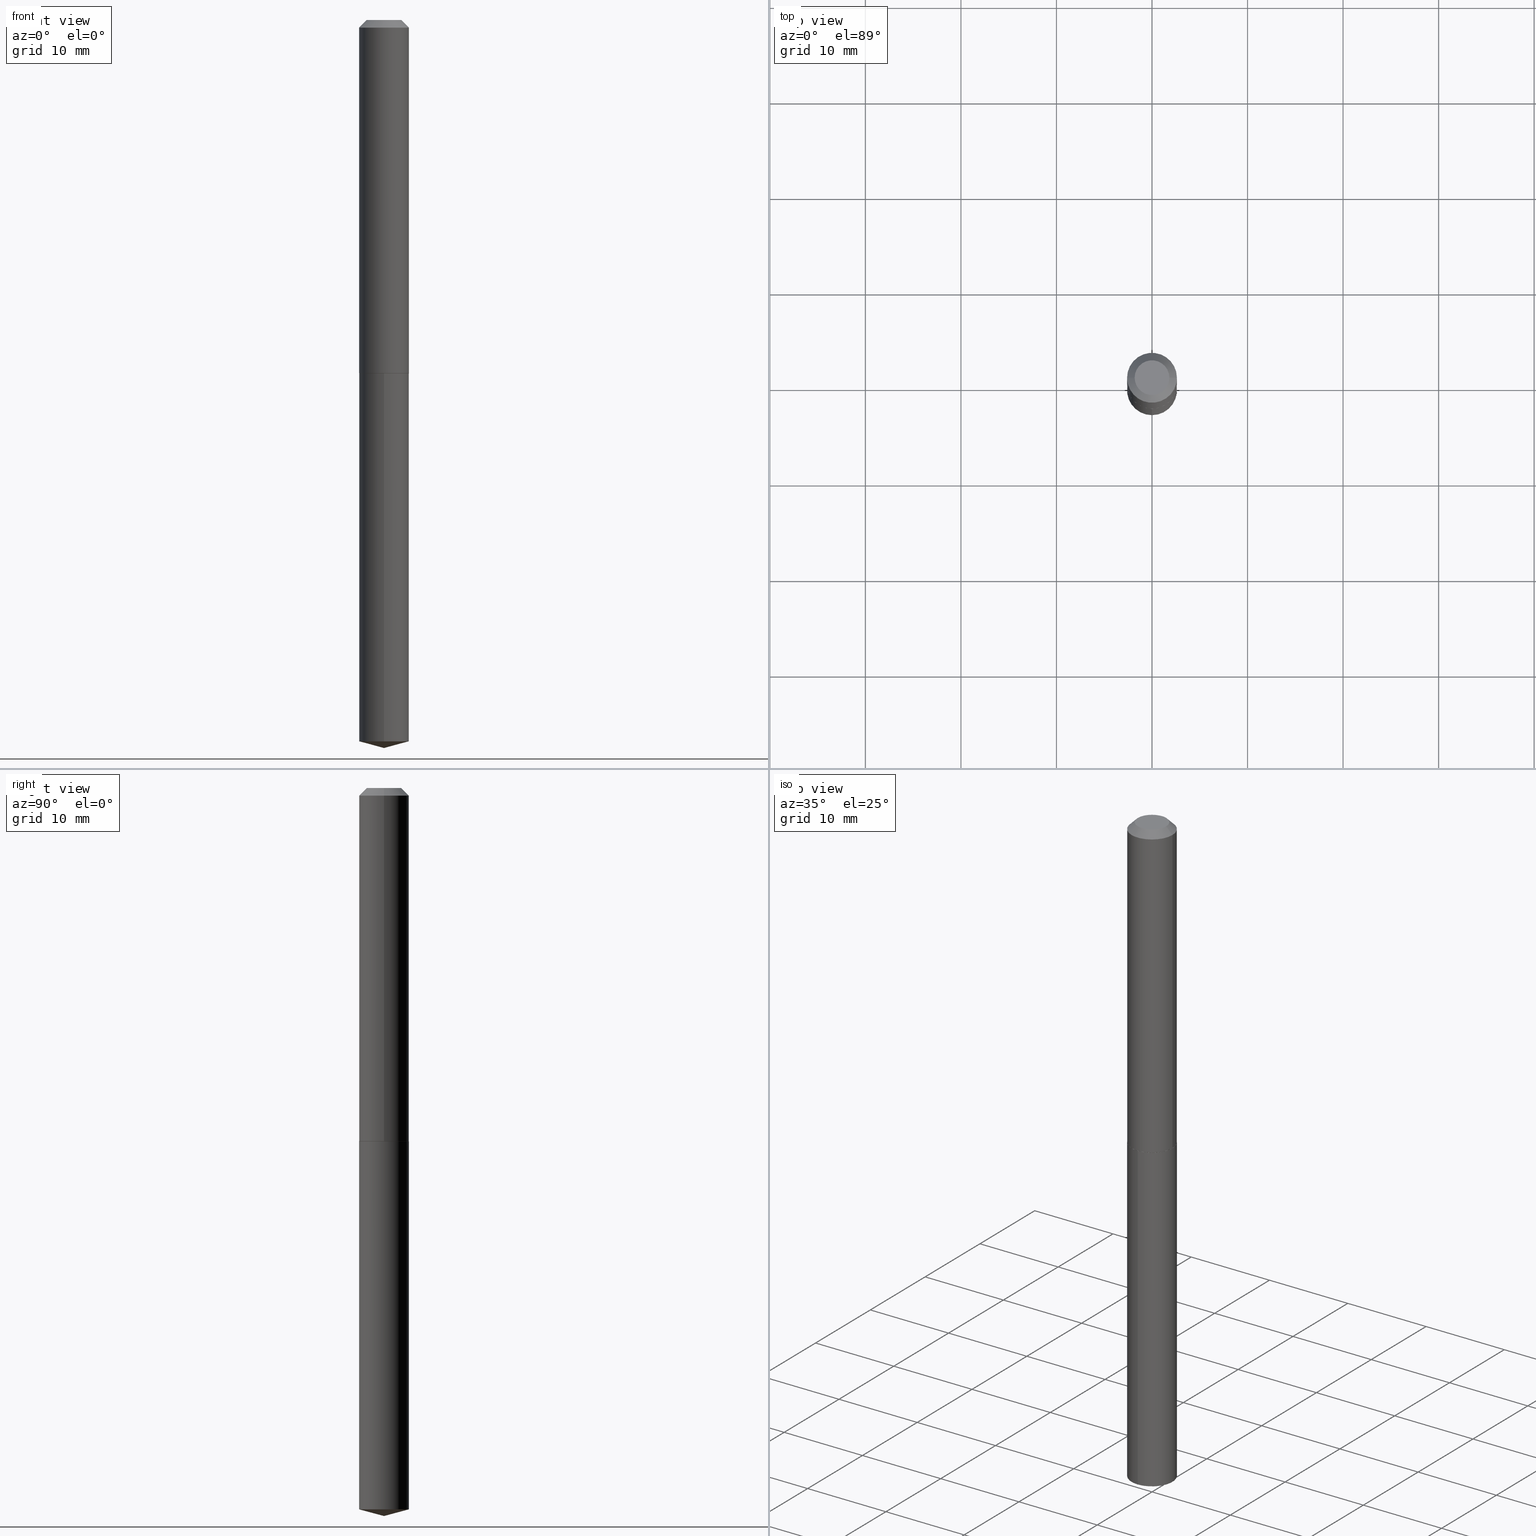
[diagram: canonical four-view strip — front | top / right | iso, engineering-drawing reading convention]
A machine part, canonical four-view strip (front | top / right | iso — engineering-drawing reading convention). The complete STEP part file that produces these views, byte-faithful:
ISO-10303-21;
HEADER;
FILE_DESCRIPTION (( 'STEP AP203' ),
    '1' );
FILE_NAME ('58049.STEP',
    '2024-04-23T00:54:57',
    ( '' ),
    ( '' ),
    'SwSTEP 2.0',
    'SolidWorks 2023',
    '' );
FILE_SCHEMA (( 'CONFIG_CONTROL_DESIGN' ));
ENDSEC;

DATA;
#1 = DESIGN_CONTEXT ( 'detailed design', #84, 'design' ) ;
#2 = ORIENTED_EDGE ( 'NONE', *, *, #246, .F. ) ;
#3 = DIRECTION ( 'NONE',  ( -2.445468806185136877E-29, 3.491481338843145188E-15, 1.000000000000000000 ) ) ;
#4 = PERSON ( 'UNSPECIFIED', 'UNSPECIFIED', 'UNSPECIFIED', ('UNSPECIFIED'), ('UNSPECIFIED'), ('UNSPECIFIED') ) ;
#5 = DIRECTION ( 'NONE',  ( -6.982962677686265922E-15, -1.000000000000000000, 5.317465681098323142E-15 ) ) ;
#6 = MANIFOLD_SOLID_BREP ( 'Body-Move/Copy2[2]', #66 ) ;
#7 = LINE ( 'NONE', #123, #341 ) ;
#8 = AXIS2_PLACEMENT_3D ( 'NONE', #181, #99, #17 ) ;
#9 = DIRECTION ( 'NONE',  ( 1.000000000000000000, -6.982962677686266711E-15, 0.000000000000000000 ) ) ;
#10 = CARTESIAN_POINT ( 'NONE',  ( 7.336407138210589791E-29, -1.047444298594226055E-14, -3.000000000000000444 ) ) ;
#11 = DIRECTION ( 'NONE',  ( -2.445476892198395388E-29, 3.491469759211931858E-15, 1.000000000000000000 ) ) ;
#12 = LINE ( 'NONE', #180, #238 ) ;
#13 = CC_DESIGN_PERSON_AND_ORGANIZATION_ASSIGNMENT ( #106, #79, ( #212 ) ) ;
#14 = ADVANCED_FACE ( 'NONE', ( #116 ), #32, .F. ) ;
#15 = DIRECTION ( 'NONE',  ( -2.445468806185136597E-29, 3.491481338843145583E-15, 1.000000000000000000 ) ) ;
#16 = CC_DESIGN_SECURITY_CLASSIFICATION ( #352, ( #212 ) ) ;
#17 = DIRECTION ( 'NONE',  ( -6.982962677686265922E-15, -1.000000000000000000, 2.658732840549161571E-15 ) ) ;
#18 = MANIFOLD_SOLID_BREP ( 'Body-Move/Copy2[1]', #243 ) ;
#19 = EDGE_CURVE ( 'NONE', #33, #316, #217, .T. ) ;
#20 = COORDINATED_UNIVERSAL_TIME_OFFSET ( 5, 0, .BEHIND. ) ;
#21 = AXIS2_PLACEMENT_3D ( 'NONE', #327, #290, #324 ) ;
#22 = AXIS2_PLACEMENT_3D ( 'NONE', #366, #90, #148 ) ;
#23 = ORIENTED_EDGE ( 'NONE', *, *, #303, .T. ) ;
#24 = ORIENTED_EDGE ( 'NONE', *, *, #59, .F. ) ;
#25 = PERSON_AND_ORGANIZATION ( #4, #360 ) ;
#26 = EDGE_CURVE ( 'NONE', #220, #80, #223, .T. ) ;
#27 = ORIENTED_EDGE ( 'NONE', *, *, #376, .F. ) ;
#28 = AXIS2_PLACEMENT_3D ( 'NONE', #331, #300, #94 ) ;
#29 = EDGE_LOOP ( 'NONE', ( #354, #349, #383, #313 ) ) ;
#30 = PERSON_AND_ORGANIZATION_ROLE ( 'creator' ) ;
#31 = APPROVAL ( #380, 'UNSPECIFIED' ) ;
#32 = PLANE ( 'NONE',  #96 ) ;
#33 = VERTEX_POINT ( 'NONE', #140 ) ;
#34 = DIRECTION ( 'NONE',  ( -2.445468806185136597E-29, 3.491481338843145583E-15, 1.000000000000000000 ) ) ;
#35 = DIRECTION ( 'NONE',  ( 6.982962677686265922E-15, 1.000000000000000000, -3.491469759211932252E-15 ) ) ;
#36 = CIRCLE ( 'NONE', #124, 0.1027500000000001745 ) ;
#37 = CARTESIAN_POINT ( 'NONE',  ( -0.1027499999999999941, -1.864524408934309430E-15, -0.03125000000000019429 ) ) ;
#38 = LINE ( 'NONE', #235, #141 ) ;
#39 = LINE ( 'NONE', #241, #275 ) ;
#40 = DIRECTION ( 'NONE',  ( -0.7071067811865453523, 2.468850131082234184E-15, -0.7071067811865496822 ) ) ;
#41 = CARTESIAN_POINT ( 'NONE',  ( -7.174994151322282046E-16, -0.1027500000000050873, -1.455500000000000016 ) ) ;
#42 = CARTESIAN_POINT ( 'NONE',  ( 7.642090019328598283E-31, -1.091087918388489651E-16, -0.03125000000000019429 ) ) ;
#43 = CARTESIAN_POINT ( 'NONE',  ( 0.000000000000000000, 0.000000000000000000, 0.000000000000000000 ) ) ;
#44 = CARTESIAN_POINT ( 'NONE',  ( -0.07149999999999999412, 5.538362273739915315E-16, 9.184850993236963133E-20 ) ) ;
#45 =( NAMED_UNIT ( * ) PLANE_ANGLE_UNIT ( ) SI_UNIT ( $, .RADIAN. ) );
#46 = EDGE_LOOP ( 'NONE', ( #131, #27, #225, #232 ) ) ;
#47 = EDGE_LOOP ( 'NONE', ( #144, #312 ) ) ;
#48 = COORDINATED_UNIVERSAL_TIME_OFFSET ( 5, 0, .BEHIND. ) ;
#49 = CONICAL_SURFACE ( 'NONE', #132, 0.1027500000000001745, 0.7853981633974653764 ) ;
#50 = ORIENTED_EDGE ( 'NONE', *, *, #119, .F. ) ;
#51 = EDGE_CURVE ( 'NONE', #219, #220, #38, .T. ) ;
#52 = ORIENTED_EDGE ( 'NONE', *, *, #236, .F. ) ;
#53 = SHAPE_DEFINITION_REPRESENTATION ( #210, #311 ) ;
#54 = ORIENTED_EDGE ( 'NONE', *, *, #297, .F. ) ;
#55 = DIRECTION ( 'NONE',  ( 1.000000000000000000, 0.000000000000000000, 0.000000000000000000 ) ) ;
#56 = AXIS2_PLACEMENT_3D ( 'NONE', #227, #358, #83 ) ;
#57 = AXIS2_PLACEMENT_3D ( 'NONE', #373, #215, #245 ) ;
#58 = DIRECTION ( 'NONE',  ( -6.982962677686265922E-15, -1.000000000000000000, 2.658732840549161571E-15 ) ) ;
#59 = EDGE_CURVE ( 'NONE', #186, #105, #340, .T. ) ;
#60 = FACE_OUTER_BOUND ( 'NONE', #234, .T. ) ;
#61 = DIRECTION ( 'NONE',  ( 1.000000000000000000, -6.982962677686266711E-15, 0.000000000000000000 ) ) ;
#62 = EDGE_LOOP ( 'NONE', ( #159, #248 ) ) ;
#63 = DIRECTION ( 'NONE',  ( -2.445468806185136597E-29, 3.491481338843145583E-15, 1.000000000000000000 ) ) ;
#64 = APPLICATION_CONTEXT ( 'configuration controlled 3d designs of mechanical parts and assemblies' ) ;
#65 = DIRECTION ( 'NONE',  ( -2.445468806185136597E-29, 3.491481338843145583E-15, 1.000000000000000000 ) ) ;
#66 = CLOSED_SHELL ( 'NONE', ( #192, #82, #206, #14, #372, #160, #88, #200 ) ) ;
#67 = LOCAL_TIME ( 20, 54, 57.00000000000000000, #222 ) ;
#68 = CARTESIAN_POINT ( 'NONE',  ( 3.558157112999375183E-29, -5.080105348016778122E-15, -1.455000000000000515 ) ) ;
#69 = CARTESIAN_POINT ( 'NONE',  ( -0.1027499999999999941, 6.083906232934149971E-16, -0.03125000000000019429 ) ) ;
#70 = FACE_OUTER_BOUND ( 'NONE', #346, .T. ) ;
#71 = CIRCLE ( 'NONE', #259, 0.07149999999999999412 ) ;
#72 = ORIENTED_EDGE ( 'NONE', *, *, #183, .T. ) ;
#73 = ORIENTED_EDGE ( 'NONE', *, *, #236, .T. ) ;
#74 = APPROVAL_STATUS ( 'not_yet_approved' ) ;
#75 = ORIENTED_EDGE ( 'NONE', *, *, #323, .F. ) ;
#76 = DATE_AND_TIME ( #255, #264 ) ;
#77 = AXIS2_PLACEMENT_3D ( 'NONE', #367, #91, #207 ) ;
#78 = ORIENTED_EDGE ( 'NONE', *, *, #26, .T. ) ;
#79 = PERSON_AND_ORGANIZATION_ROLE ( 'design_supplier' ) ;
#80 = VERTEX_POINT ( 'NONE', #37 ) ;
#81 = DATE_TIME_ROLE ( 'classification_date' ) ;
#82 = ADVANCED_FACE ( 'NONE', ( #385 ), #359, .T. ) ;
#83 = DIRECTION ( 'NONE',  ( 1.000000000000000000, -6.982962677686265922E-15, 4.876176775795935232E-29 ) ) ;
#84 = APPLICATION_CONTEXT ( 'configuration controlled 3d designs of mechanical parts and assemblies' ) ;
#85 = DIRECTION ( 'NONE',  ( -2.445468806185136597E-29, 3.491481338843145583E-15, 1.000000000000000000 ) ) ;
#86 = CARTESIAN_POINT ( 'NONE',  ( -8.894219889568354015E-28, 1.269850132072634008E-13, 36.37007874015748143 ) ) ;
#87 = CARTESIAN_POINT ( 'NONE',  ( -0.1027500000000000913, 7.300826609935035894E-16, -5.054205805236919921E-30 ) ) ;
#88 = ADVANCED_FACE ( 'NONE', ( #194 ), #168, .T. ) ;
#89 = ORIENTED_EDGE ( 'NONE', *, *, #301, .T. ) ;
#90 = DIRECTION ( 'NONE',  ( -2.445468806185136597E-29, 3.491481338843145583E-15, 1.000000000000000000 ) ) ;
#91 = DIRECTION ( 'NONE',  ( -2.445468806185136597E-29, 3.491481338843145583E-15, 1.000000000000000000 ) ) ;
#92 = FACE_OUTER_BOUND ( 'NONE', #29, .T. ) ;
#93 = CC_DESIGN_PERSON_AND_ORGANIZATION_ASSIGNMENT ( #25, #135, ( #212 ) ) ;
#94 = DIRECTION ( 'NONE',  ( -6.982962677686265922E-15, -1.000000000000000000, 2.658732840549161571E-15 ) ) ;
#95 = CARTESIAN_POINT ( 'NONE',  ( -7.174994151321908323E-16, -0.1027500000000103608, -2.972468220477701539 ) ) ;
#96 = AXIS2_PLACEMENT_3D ( 'NONE', #171, #361, #330 ) ;
#97 = APPROVAL_PERSON_ORGANIZATION ( #320, #31, #286 ) ;
#98 = CARTESIAN_POINT ( 'NONE',  ( 7.300826609935383979E-16, 0.1027499999999949148, -1.455500000000000682 ) ) ;
#99 = DIRECTION ( 'NONE',  ( -2.445476892198395388E-29, 3.491469759211931858E-15, 1.000000000000000000 ) ) ;
#100 = ADVANCED_FACE ( 'NONE', ( #387 ), #292, .F. ) ;
#101 = ORIENTED_EDGE ( 'NONE', *, *, #309, .T. ) ;
#102 = CC_DESIGN_APPROVAL ( #204, ( #293 ) ) ;
#103 = ORIENTED_EDGE ( 'NONE', *, *, #229, .F. ) ;
#104 = PERSON_AND_ORGANIZATION ( #4, #360 ) ;
#105 = VERTEX_POINT ( 'NONE', #167 ) ;
#106 = PERSON_AND_ORGANIZATION ( #4, #360 ) ;
#107 =( CONVERSION_BASED_UNIT ( 'INCH', #256 ) LENGTH_UNIT ( ) NAMED_UNIT ( #172 ) );
#108 = AXIS2_PLACEMENT_3D ( 'NONE', #266, #388, #120 ) ;
#109 = AXIS2_PLACEMENT_3D ( 'NONE', #336, #11, #5 ) ;
#110 = ORIENTED_EDGE ( 'NONE', *, *, #246, .T. ) ;
#111 = APPROVAL_DATE_TIME ( #258, #204 ) ;
#112 = CARTESIAN_POINT ( 'NONE',  ( 3.559379847402467424E-29, -5.081851088686199626E-15, -1.455500000000000460 ) ) ;
#113 = CALENDAR_DATE ( 2024, 22, 4 ) ;
#114 = DIRECTION ( 'NONE',  ( -2.445476892198395388E-29, 3.491469759211932252E-15, 1.000000000000000000 ) ) ;
#115 = CONICAL_SURFACE ( 'NONE', #176, 0.1027500000000001745, 0.7853981633974653764 ) ;
#116 = FACE_OUTER_BOUND ( 'NONE', #47, .T. ) ;
#117 = CARTESIAN_POINT ( 'NONE',  ( -2.246126659432003959E-48, 3.206873584422743139E-34, 9.184850993605185290E-20 ) ) ;
#118 = DIRECTION ( 'NONE',  ( -2.445476892198395388E-29, 3.491469759211931858E-15, 1.000000000000000000 ) ) ;
#119 = EDGE_CURVE ( 'NONE', #254, #186, #265, .T. ) ;
#120 = DIRECTION ( 'NONE',  ( 1.000000000000000000, -6.982962677686265922E-15, 4.876176775795935232E-29 ) ) ;
#121 = CYLINDRICAL_SURFACE ( 'NONE', #382, 0.1027499999999999941 ) ;
#122 = AXIS2_PLACEMENT_3D ( 'NONE', #139, #197, #35 ) ;
#123 = CARTESIAN_POINT ( 'NONE',  ( -0.1027500000000001745, -4.350022687023274336E-15, -1.455000000000000515 ) ) ;
#124 = AXIS2_PLACEMENT_3D ( 'NONE', #209, #198, #9 ) ;
#125 = CARTESIAN_POINT ( 'NONE',  ( -0.1027500000000001745, -4.350022687023274336E-15, -1.455000000000000515 ) ) ;
#126 = DIRECTION ( 'NONE',  ( 0.7071067811865595631, -2.468850131082382884E-15, 0.7071067811865354713 ) ) ;
#127 = CARTESIAN_POINT ( 'NONE',  ( 7.269090576780008610E-29, -1.037829975616963449E-14, -2.972468220477702427 ) ) ;
#128 = DIRECTION ( 'NONE',  ( 0.000000000000000000, 0.000000000000000000, 1.000000000000000000 ) ) ;
#129 = VECTOR ( 'NONE', #310, 39.37007874015748854 ) ;
#130 = DIRECTION ( 'NONE',  ( -2.445476892198395388E-29, 3.491469759211932252E-15, 1.000000000000000000 ) ) ;
#131 = ORIENTED_EDGE ( 'NONE', *, *, #51, .F. ) ;
#132 = AXIS2_PLACEMENT_3D ( 'NONE', #295, #34, #390 ) ;
#133 = EDGE_LOOP ( 'NONE', ( #379, #184, #78, #103 ) ) ;
#134 = EDGE_LOOP ( 'NONE', ( #321, #164 ) ) ;
#135 = PERSON_AND_ORGANIZATION_ROLE ( 'creator' ) ;
#136 = CC_DESIGN_DATE_AND_TIME_ASSIGNMENT ( #137, #378, ( #293 ) ) ;
#137 = DATE_AND_TIME ( #113, #67 ) ;
#138 = EDGE_CURVE ( 'NONE', #257, #80, #230, .T. ) ;
#139 = CARTESIAN_POINT ( 'NONE',  ( 3.559379847402467424E-29, -5.081851088686199626E-15, -1.455500000000000460 ) ) ;
#140 = CARTESIAN_POINT ( 'NONE',  ( -0.1022500000000002573, -4.352671914197384748E-15, -1.455500000000000460 ) ) ;
#141 = VECTOR ( 'NONE', #146, 39.37007874015748143 ) ;
#142 = ADVANCED_FACE ( 'NONE', ( #60 ), #333, .T. ) ;
#143 = CIRCLE ( 'NONE', #8, 0.1027499999999999941 ) ;
#144 = ORIENTED_EDGE ( 'NONE', *, *, #303, .F. ) ;
#145 = DIRECTION ( 'NONE',  ( -2.445468806185136597E-29, 3.491481338843145583E-15, 1.000000000000000000 ) ) ;
#146 = DIRECTION ( 'NONE',  ( 0.7071067811865453523, -7.319954787623248157E-15, -0.7071067811865496822 ) ) ;
#147 = CARTESIAN_POINT ( 'NONE',  ( 0.07149999999999999412, -6.522752839752690744E-16, 9.184850994007776871E-20 ) ) ;
#148 = DIRECTION ( 'NONE',  ( 1.000000000000000000, -6.982962677686267499E-15, 4.876179180505662311E-29 ) ) ;
#149 = CARTESIAN_POINT ( 'NONE',  ( -8.894219889568354015E-28, 1.269850132072634008E-13, 36.37007874015748143 ) ) ;
#150 = DIRECTION ( 'NONE',  ( 1.000000000000000000, -6.982962677686266711E-15, 0.000000000000000000 ) ) ;
#151 = FACE_OUTER_BOUND ( 'NONE', #161, .T. ) ;
#152 = DIRECTION ( 'NONE',  ( -2.445476892198395388E-29, 3.491469759211931858E-15, 1.000000000000000000 ) ) ;
#153 = APPROVAL ( #250, 'UNSPECIFIED' ) ;
#154 = ORIENTED_EDGE ( 'NONE', *, *, #214, .F. ) ;
#155 = PERSON_AND_ORGANIZATION ( #4, #360 ) ;
#156 = ORIENTED_EDGE ( 'NONE', *, *, #19, .T. ) ;
#157 = VECTOR ( 'NONE', #240, 39.37007874015748143 ) ;
#158 = VERTEX_POINT ( 'NONE', #332 ) ;
#159 = ORIENTED_EDGE ( 'NONE', *, *, #59, .T. ) ;
#160 = ADVANCED_FACE ( 'NONE', ( #263 ), #298, .T. ) ;
#161 = EDGE_LOOP ( 'NONE', ( #251, #374, #52 ) ) ;
#162 = PERSON_AND_ORGANIZATION_ROLE ( 'design_owner' ) ;
#163 = CIRCLE ( 'NONE', #281, 0.1027499999999999941 ) ;
#164 = ORIENTED_EDGE ( 'NONE', *, *, #345, .T. ) ;
#165 = DIRECTION ( 'NONE',  ( -6.982962677686265133E-15, -1.000000000000000000, 3.510303681827661338E-15 ) ) ;
#166 = CYLINDRICAL_SURFACE ( 'NONE', #28, 0.1027499999999999941 ) ;
#167 = CARTESIAN_POINT ( 'NONE',  ( 7.300826609935757702E-16, 0.1027499999999949148, -1.455500000000000682 ) ) ;
#168 = CONICAL_SURFACE ( 'NONE', #21, 0.1027499999999999941, 0.7853981633974452814 ) ;
#169 = CC_DESIGN_APPROVAL ( #31, ( #352 ) ) ;
#170 = DIRECTION ( 'NONE',  ( -2.445476892198395388E-29, 3.491469759211931858E-15, 1.000000000000000000 ) ) ;
#171 = CARTESIAN_POINT ( 'NONE',  ( 8.439090012943259339E-30, -8.970559895315373561E-15, -1.455500000000000460 ) ) ;
#172 = DIMENSIONAL_EXPONENTS ( 1.000000000000000000, 0.000000000000000000, 0.000000000000000000, 0.000000000000000000, 0.000000000000000000, 0.000000000000000000, 0.000000000000000000 ) ;
#173 = FACE_OUTER_BOUND ( 'NONE', #277, .T. ) ;
#174 = DIRECTION ( 'NONE',  ( 1.000000000000000000, -6.982962677686265922E-15, 0.000000000000000000 ) ) ;
#175 = CARTESIAN_POINT ( 'NONE',  ( 0.1027500000000001745, -5.797604763149043699E-15, -1.455000000000000515 ) ) ;
#176 = AXIS2_PLACEMENT_3D ( 'NONE', #68, #305, #343 ) ;
#177 = UNCERTAINTY_MEASURE_WITH_UNIT (LENGTH_MEASURE( 1.000000000000000082E-05 ), #107, 'distance_accuracy_value', 'NONE');
#178 = FACE_OUTER_BOUND ( 'NONE', #134, .T. ) ;
#179 = APPLICATION_PROTOCOL_DEFINITION ( 'international standard', 'config_control_design', 1994, #64 ) ;
#180 = CARTESIAN_POINT ( 'NONE',  ( 0.1027500000000001745, -5.797604763149043699E-15, -1.455000000000000515 ) ) ;
#181 = CARTESIAN_POINT ( 'NONE',  ( 3.559379847402467424E-29, -5.081851088686199626E-15, -1.455500000000000460 ) ) ;
#182 = VECTOR ( 'NONE', #40, 39.37007874015748143 ) ;
#183 = EDGE_CURVE ( 'NONE', #377, #105, #363, .T. ) ;
#184 = ORIENTED_EDGE ( 'NONE', *, *, #51, .T. ) ;
#185 = ORIENTED_EDGE ( 'NONE', *, *, #301, .F. ) ;
#186 = VERTEX_POINT ( 'NONE', #41 ) ;
#187 = CALENDAR_DATE ( 2024, 22, 4 ) ;
#188 = AXIS2_PLACEMENT_3D ( 'NONE', #112, #85, #335 ) ;
#189 = LOCAL_TIME ( 20, 54, 57.00000000000000000, #325 ) ;
#190 = ORIENTED_EDGE ( 'NONE', *, *, #368, .T. ) ;
#191 = APPROVAL_DATE_TIME ( #252, #31 ) ;
#192 = ADVANCED_FACE ( 'NONE', ( #211 ), #375, .T. ) ;
#193 = ORIENTED_EDGE ( 'NONE', *, *, #356, .F. ) ;
#194 = FACE_OUTER_BOUND ( 'NONE', #46, .T. ) ;
#195 = AXIS2_PLACEMENT_3D ( 'NONE', #43, #128, #55 ) ;
#196 = CARTESIAN_POINT ( 'NONE',  ( 7.642090019328598283E-31, -1.091087918388489651E-16, -0.03125000000000019429 ) ) ;
#197 = DIRECTION ( 'NONE',  ( 2.445476892198394548E-29, -3.491469759211932252E-15, -1.000000000000000000 ) ) ;
#198 = DIRECTION ( 'NONE',  ( -2.445468806185136597E-29, 3.491481338843145583E-15, 1.000000000000000000 ) ) ;
#199 = VERTEX_POINT ( 'NONE', #175 ) ;
#200 = ADVANCED_FACE ( 'NONE', ( #178 ), #268, .F. ) ;
#201 = AXIS2_PLACEMENT_3D ( 'NONE', #276, #371, #302 ) ;
#202 = LOCAL_TIME ( 20, 54, 57.00000000000000000, #20 ) ;
#203 = ORIENTED_EDGE ( 'NONE', *, *, #272, .F. ) ;
#204 = APPROVAL ( #74, 'UNSPECIFIED' ) ;
#205 = DIRECTION ( 'NONE',  ( -2.445476892198395388E-29, 3.491469759211931858E-15, 1.000000000000000000 ) ) ;
#206 = ADVANCED_FACE ( 'NONE', ( #70 ), #115, .T. ) ;
#207 = DIRECTION ( 'NONE',  ( 1.000000000000000000, -6.982962677686266711E-15, 0.000000000000000000 ) ) ;
#208 = CARTESIAN_POINT ( 'NONE',  ( 3.559379847402467424E-29, -5.081851088686199626E-15, -1.455500000000000460 ) ) ;
#209 = CARTESIAN_POINT ( 'NONE',  ( 3.558157112999375183E-29, -5.080105348016778122E-15, -1.455000000000000515 ) ) ;
#210 = PRODUCT_DEFINITION_SHAPE ( 'NONE', 'NONE',  #293 ) ;
#211 = FACE_OUTER_BOUND ( 'NONE', #133, .T. ) ;
#212 = PRODUCT_DEFINITION_FORMATION_WITH_SPECIFIED_SOURCE ( 'ANY', '', #237, .NOT_KNOWN. ) ;
#213 =( NAMED_UNIT ( * ) SI_UNIT ( $, .STERADIAN. ) SOLID_ANGLE_UNIT ( ) );
#214 = EDGE_CURVE ( 'NONE', #80, #220, #163, .T. ) ;
#215 = DIRECTION ( 'NONE',  ( 2.445468806185136597E-29, -3.491481338843145583E-15, -1.000000000000000000 ) ) ;
#216 = CARTESIAN_POINT ( 'NONE',  ( 7.336430882999034569E-29, -1.047440927763579636E-14, -3.000000000000000444 ) ) ;
#217 = CIRCLE ( 'NONE', #188, 0.1022500000000002573 ) ;
#218 = ORIENTED_EDGE ( 'NONE', *, *, #138, .F. ) ;
#219 = VERTEX_POINT ( 'NONE', #147 ) ;
#220 = VERTEX_POINT ( 'NONE', #339 ) ;
#221 = APPROVAL_ROLE ( '' ) ;
#222 = COORDINATED_UNIVERSAL_TIME_OFFSET ( 5, 0, .BEHIND. ) ;
#223 = CIRCLE ( 'NONE', #351, 0.1027499999999999941 ) ;
#224 = AXIS2_PLACEMENT_3D ( 'NONE', #127, #273, #304 ) ;
#225 = ORIENTED_EDGE ( 'NONE', *, *, #229, .T. ) ;
#226 = APPROVAL_ROLE ( '' ) ;
#227 = CARTESIAN_POINT ( 'NONE',  ( 0.000000000000000000, 0.000000000000000000, 0.000000000000000000 ) ) ;
#228 = CALENDAR_DATE ( 2024, 22, 4 ) ;
#229 = EDGE_CURVE ( 'NONE', #285, #80, #342, .T. ) ;
#230 = LINE ( 'NONE', #87, #315 ) ;
#231 = APPROVAL_PERSON_ORGANIZATION ( #155, #204, #221 ) ;
#232 = ORIENTED_EDGE ( 'NONE', *, *, #214, .T. ) ;
#233 = DIRECTION ( 'NONE',  ( 1.000000000000000000, -6.982962677686267499E-15, 4.876179180505662311E-29 ) ) ;
#234 = EDGE_LOOP ( 'NONE', ( #203, #101, #193 ) ) ;
#235 = CARTESIAN_POINT ( 'NONE',  ( 0.1027499999999999941, -8.140249611098738054E-16, -0.03125000000000019429 ) ) ;
#236 = EDGE_CURVE ( 'NONE', #254, #377, #249, .T. ) ;
#237 = PRODUCT ( '58049', '58049', '', ( #384 ) ) ;
#238 = VECTOR ( 'NONE', #126, 39.37007874015748143 ) ;
#239 = DIRECTION ( 'NONE',  ( -0.7071067811865595631, 7.493145998870398336E-15, 0.7071067811865354713 ) ) ;
#240 = DIRECTION ( 'NONE',  ( -6.745023994389835189E-15, -0.9659258262890669799, 0.2588190451025256245 ) ) ;
#241 = CARTESIAN_POINT ( 'NONE',  ( 0.1027500000000000913, -7.174994151322644922E-16, 5.010271637130328063E-30 ) ) ;
#242 = DIRECTION ( 'NONE',  ( -6.982962677686265133E-15, -1.000000000000000000, 3.510303681827661338E-15 ) ) ;
#243 = CLOSED_SHELL ( 'NONE', ( #357, #253, #142, #337, #100 ) ) ;
#244 = CC_DESIGN_APPROVAL ( #153, ( #212 ) ) ;
#245 = DIRECTION ( 'NONE',  ( -1.000000000000000000, 6.982962677686266711E-15, 0.000000000000000000 ) ) ;
#246 = EDGE_CURVE ( 'NONE', #316, #199, #12, .T. ) ;
#247 = AXIS2_PLACEMENT_3D ( 'NONE', #288, #118, #58 ) ;
#248 = ORIENTED_EDGE ( 'NONE', *, *, #267, .T. ) ;
#249 = CIRCLE ( 'NONE', #224, 0.1027499999999999941 ) ;
#250 = APPROVAL_STATUS ( 'not_yet_approved' ) ;
#251 = ORIENTED_EDGE ( 'NONE', *, *, #309, .F. ) ;
#252 = DATE_AND_TIME ( #228, #189 ) ;
#253 = ADVANCED_FACE ( 'NONE', ( #151 ), #317, .T. ) ;
#254 = VERTEX_POINT ( 'NONE', #95 ) ;
#255 = CALENDAR_DATE ( 2024, 22, 4 ) ;
#256 = LENGTH_MEASURE_WITH_UNIT ( LENGTH_MEASURE( 0.02539999999999999897 ), #289 );
#257 = VERTEX_POINT ( 'NONE', #125 ) ;
#258 = DATE_AND_TIME ( #350, #270 ) ;
#259 = AXIS2_PLACEMENT_3D ( 'NONE', #117, #145, #233 ) ;
#260 = ORIENTED_EDGE ( 'NONE', *, *, #323, .T. ) ;
#261 = APPLICATION_PROTOCOL_DEFINITION ( 'international standard', 'config_control_design', 1994, #84 ) ;
#262 = ORIENTED_EDGE ( 'NONE', *, *, #138, .T. ) ;
#263 = FACE_OUTER_BOUND ( 'NONE', #299, .T. ) ;
#264 = LOCAL_TIME ( 20, 54, 57.00000000000000000, #353 ) ;
#265 = LINE ( 'NONE', #362, #274 ) ;
#266 = CARTESIAN_POINT ( 'NONE',  ( 0.000000000000000000, 0.000000000000000000, 0.000000000000000000 ) ) ;
#267 = EDGE_CURVE ( 'NONE', #105, #186, #143, .T. ) ;
#268 = PLANE ( 'NONE',  #201 ) ;
#269 = VECTOR ( 'NONE', #130, 39.37007874015748143 ) ;
#270 = LOCAL_TIME ( 20, 54, 57.00000000000000000, #48 ) ;
#271 = LINE ( 'NONE', #10, #157 ) ;
#272 = EDGE_CURVE ( 'NONE', #158, #377, #306, .T. ) ;
#273 = DIRECTION ( 'NONE',  ( -2.445476892198395388E-29, 3.491469759211931858E-15, 1.000000000000000000 ) ) ;
#274 = VECTOR ( 'NONE', #114, 39.37007874015748143 ) ;
#275 = VECTOR ( 'NONE', #370, 39.37007874015748143 ) ;
#276 = CARTESIAN_POINT ( 'NONE',  ( -1.123063329716001979E-48, 1.603436792211371569E-34, 4.592425496802592645E-20 ) ) ;
#277 = EDGE_LOOP ( 'NONE', ( #73, #72, #24, #50 ) ) ;
#278 = PERSON_AND_ORGANIZATION_ROLE ( 'classification_officer' ) ;
#279 = AXIS2_PLACEMENT_3D ( 'NONE', #86, #170, #165 ) ;
#280 = EDGE_LOOP ( 'NONE', ( #89, #262, #282, #348 ) ) ;
#281 = AXIS2_PLACEMENT_3D ( 'NONE', #42, #15, #150 ) ;
#282 = ORIENTED_EDGE ( 'NONE', *, *, #26, .F. ) ;
#283 = APPROVAL_DATE_TIME ( #76, #153 ) ;
#284 = EDGE_LOOP ( 'NONE', ( #54, #156, #110, #75 ) ) ;
#285 = VERTEX_POINT ( 'NONE', #44 ) ;
#286 = APPROVAL_ROLE ( '' ) ;
#287 =( GEOMETRIC_REPRESENTATION_CONTEXT ( 3 ) GLOBAL_UNCERTAINTY_ASSIGNED_CONTEXT ( ( #177 ) ) GLOBAL_UNIT_ASSIGNED_CONTEXT ( ( #107, #45, #213 ) ) REPRESENTATION_CONTEXT ( 'NONE', 'WORKASPACE' ) );
#288 = CARTESIAN_POINT ( 'NONE',  ( 3.559379847402467424E-29, -5.081851088686199626E-15, -1.455500000000000460 ) ) ;
#289 =( LENGTH_UNIT ( ) NAMED_UNIT ( * ) SI_UNIT ( $, .METRE. ) );
#290 = DIRECTION ( 'NONE',  ( 2.445468806185136597E-29, -3.491481338843145583E-15, -1.000000000000000000 ) ) ;
#291 = FACE_OUTER_BOUND ( 'NONE', #284, .T. ) ;
#292 = PLANE ( 'NONE',  #122 ) ;
#293 = PRODUCT_DEFINITION ( 'UNKNOWN', '', #212, #1 ) ;
#294 = CIRCLE ( 'NONE', #77, 0.1027500000000001745 ) ;
#295 = CARTESIAN_POINT ( 'NONE',  ( 3.558157112999375183E-29, -5.080105348016778122E-15, -1.455000000000000515 ) ) ;
#296 = APPROVAL_PERSON_ORGANIZATION ( #355, #153, #226 ) ;
#297 = EDGE_CURVE ( 'NONE', #33, #257, #7, .T. ) ;
#298 = CYLINDRICAL_SURFACE ( 'NONE', #108, 0.1027500000000000913 ) ;
#299 = EDGE_LOOP ( 'NONE', ( #218, #260, #190, #154 ) ) ;
#300 = DIRECTION ( 'NONE',  ( -2.445476892198395388E-29, 3.491469759211931858E-15, 1.000000000000000000 ) ) ;
#301 = EDGE_CURVE ( 'NONE', #199, #257, #294, .T. ) ;
#302 = DIRECTION ( 'NONE',  ( -1.000000000000000000, 6.982962677686265922E-15, -4.876176775795935793E-29 ) ) ;
#303 = EDGE_CURVE ( 'NONE', #316, #33, #334, .T. ) ;
#304 = DIRECTION ( 'NONE',  ( -6.982962677686265922E-15, -1.000000000000000000, 5.317465681098323142E-15 ) ) ;
#305 = DIRECTION ( 'NONE',  ( -2.445468806185136597E-29, 3.491481338843145583E-15, 1.000000000000000000 ) ) ;
#306 = LINE ( 'NONE', #216, #129 ) ;
#307 = CC_DESIGN_PERSON_AND_ORGANIZATION_ASSIGNMENT ( #386, #278, ( #352 ) ) ;
#308 = AXIS2_PLACEMENT_3D ( 'NONE', #149, #152, #242 ) ;
#309 = EDGE_CURVE ( 'NONE', #158, #254, #271, .T. ) ;
#310 = DIRECTION ( 'NONE',  ( 6.863315791527689526E-15, 0.9659258262890687563, 0.2588190451025188521 ) ) ;
#311 = ADVANCED_BREP_SHAPE_REPRESENTATION ( '58049', ( #18, #6, #195 ), #287 ) ;
#312 = ORIENTED_EDGE ( 'NONE', *, *, #19, .F. ) ;
#313 = ORIENTED_EDGE ( 'NONE', *, *, #267, .F. ) ;
#314 = PERSON_AND_ORGANIZATION ( #4, #360 ) ;
#315 = VECTOR ( 'NONE', #3, 39.37007874015748143 ) ;
#316 = VERTEX_POINT ( 'NONE', #369 ) ;
#317 = CONICAL_SURFACE ( 'NONE', #308, 146.9311341562541315, 1.308996938995745651 ) ;
#318 = DATE_AND_TIME ( #187, #202 ) ;
#319 = ORIENTED_EDGE ( 'NONE', *, *, #297, .T. ) ;
#320 = PERSON_AND_ORGANIZATION ( #4, #360 ) ;
#321 = ORIENTED_EDGE ( 'NONE', *, *, #376, .T. ) ;
#322 = SECURITY_CLASSIFICATION_LEVEL ( 'unclassified' ) ;
#323 = EDGE_CURVE ( 'NONE', #257, #199, #36, .T. ) ;
#324 = DIRECTION ( 'NONE',  ( -1.000000000000000000, 6.982962677686266711E-15, 0.000000000000000000 ) ) ;
#325 = COORDINATED_UNIVERSAL_TIME_OFFSET ( 5, 0, .BEHIND. ) ;
#326 = CIRCLE ( 'NONE', #109, 0.1027499999999999941 ) ;
#327 = CARTESIAN_POINT ( 'NONE',  ( 7.642090019328598283E-31, -1.091087918388489651E-16, -0.03125000000000019429 ) ) ;
#328 = DIRECTION ( 'NONE',  ( -6.982962677686265922E-15, -1.000000000000000000, 2.658732840549161571E-15 ) ) ;
#329 = CC_DESIGN_DATE_AND_TIME_ASSIGNMENT ( #318, #81, ( #352 ) ) ;
#330 = DIRECTION ( 'NONE',  ( 1.000000000000000000, -6.982962677686265922E-15, 4.876176775795935793E-29 ) ) ;
#331 = CARTESIAN_POINT ( 'NONE',  ( 3.559379847402467424E-29, -5.081851088686199626E-15, -1.455500000000000460 ) ) ;
#332 = CARTESIAN_POINT ( 'NONE',  ( 7.336430676595185324E-29, -1.047440927763579636E-14, -3.000000000000000444 ) ) ;
#333 = CONICAL_SURFACE ( 'NONE', #279, 146.9311341562541315, 1.308996938995745651 ) ;
#334 = CIRCLE ( 'NONE', #365, 0.1022500000000002573 ) ;
#335 = DIRECTION ( 'NONE',  ( 1.000000000000000000, -6.982962677686265922E-15, 0.000000000000000000 ) ) ;
#336 = CARTESIAN_POINT ( 'NONE',  ( 7.269090576780008610E-29, -1.037829975616963449E-14, -2.972468220477702427 ) ) ;
#337 = ADVANCED_FACE ( 'NONE', ( #92 ), #121, .T. ) ;
#338 = CARTESIAN_POINT ( 'NONE',  ( 3.559379847402467424E-29, -5.081851088686199626E-15, -1.455500000000000460 ) ) ;
#339 = CARTESIAN_POINT ( 'NONE',  ( 0.1027499999999999941, -8.266082069711128040E-16, -0.03125000000000019429 ) ) ;
#340 = CIRCLE ( 'NONE', #247, 0.1027499999999999941 ) ;
#341 = VECTOR ( 'NONE', #239, 39.37007874015748143 ) ;
#342 = LINE ( 'NONE', #69, #182 ) ;
#343 = DIRECTION ( 'NONE',  ( 1.000000000000000000, -6.982962677686266711E-15, 0.000000000000000000 ) ) ;
#344 = CC_DESIGN_PERSON_AND_ORGANIZATION_ASSIGNMENT ( #104, #162, ( #237 ) ) ;
#345 = EDGE_CURVE ( 'NONE', #219, #285, #389, .T. ) ;
#346 = EDGE_LOOP ( 'NONE', ( #23, #319, #185, #2 ) ) ;
#347 = PRODUCT_RELATED_PRODUCT_CATEGORY ( 'detail', '', ( #237 ) ) ;
#348 = ORIENTED_EDGE ( 'NONE', *, *, #368, .F. ) ;
#349 = ORIENTED_EDGE ( 'NONE', *, *, #356, .T. ) ;
#350 = CALENDAR_DATE ( 2024, 22, 4 ) ;
#351 = AXIS2_PLACEMENT_3D ( 'NONE', #196, #63, #61 ) ;
#352 = SECURITY_CLASSIFICATION ( '', '', #322 ) ;
#353 = COORDINATED_UNIVERSAL_TIME_OFFSET ( 5, 0, .BEHIND. ) ;
#354 = ORIENTED_EDGE ( 'NONE', *, *, #183, .F. ) ;
#355 = PERSON_AND_ORGANIZATION ( #4, #360 ) ;
#356 = EDGE_CURVE ( 'NONE', #377, #254, #326, .T. ) ;
#357 = ADVANCED_FACE ( 'NONE', ( #173 ), #166, .T. ) ;
#358 = DIRECTION ( 'NONE',  ( -2.445468806185136597E-29, 3.491481338843145583E-15, 1.000000000000000000 ) ) ;
#359 = CYLINDRICAL_SURFACE ( 'NONE', #56, 0.1027500000000000913 ) ;
#360 = ORGANIZATION ( 'UNSPECIFIED', 'UNSPECIFIED', '' ) ;
#361 = DIRECTION ( 'NONE',  ( -2.438088387897960049E-29, 3.491481338843145188E-15, 1.000000000000000000 ) ) ;
#362 = CARTESIAN_POINT ( 'NONE',  ( -7.174994151322282046E-16, -0.1027500000000050873, -1.455500000000000016 ) ) ;
#363 = LINE ( 'NONE', #98, #269 ) ;
#364 = CC_DESIGN_PERSON_AND_ORGANIZATION_ASSIGNMENT ( #314, #30, ( #293 ) ) ;
#365 = AXIS2_PLACEMENT_3D ( 'NONE', #338, #65, #174 ) ;
#366 = CARTESIAN_POINT ( 'NONE',  ( -2.246126659432003959E-48, 3.206873584422743139E-34, 9.184850993605185290E-20 ) ) ;
#367 = CARTESIAN_POINT ( 'NONE',  ( 3.558157112999375183E-29, -5.080105348016778122E-15, -1.455000000000000515 ) ) ;
#368 = EDGE_CURVE ( 'NONE', #199, #220, #39, .T. ) ;
#369 = CARTESIAN_POINT ( 'NONE',  ( 0.1022500000000002573, -5.795859022479622196E-15, -1.455500000000000460 ) ) ;
#370 = DIRECTION ( 'NONE',  ( -2.445468806185136877E-29, 3.491481338843145188E-15, 1.000000000000000000 ) ) ;
#371 = DIRECTION ( 'NONE',  ( 2.438088387897960049E-29, -3.491481338843145188E-15, -1.000000000000000000 ) ) ;
#372 = ADVANCED_FACE ( 'NONE', ( #291 ), #49, .T. ) ;
#373 = CARTESIAN_POINT ( 'NONE',  ( 7.642090019328598283E-31, -1.091087918388489651E-16, -0.03125000000000019429 ) ) ;
#374 = ORIENTED_EDGE ( 'NONE', *, *, #272, .T. ) ;
#375 = CONICAL_SURFACE ( 'NONE', #57, 0.1027499999999999941, 0.7853981633974452814 ) ;
#376 = EDGE_CURVE ( 'NONE', #285, #219, #71, .T. ) ;
#377 = VERTEX_POINT ( 'NONE', #381 ) ;
#378 = DATE_TIME_ROLE ( 'creation_date' ) ;
#379 = ORIENTED_EDGE ( 'NONE', *, *, #345, .F. ) ;
#380 = APPROVAL_STATUS ( 'not_yet_approved' ) ;
#381 = CARTESIAN_POINT ( 'NONE',  ( 7.300826609935753758E-16, 0.1027499999999895858, -2.972468220477702872 ) ) ;
#382 = AXIS2_PLACEMENT_3D ( 'NONE', #208, #205, #328 ) ;
#383 = ORIENTED_EDGE ( 'NONE', *, *, #119, .T. ) ;
#384 = MECHANICAL_CONTEXT ( 'NONE', #64, 'mechanical' ) ;
#385 = FACE_OUTER_BOUND ( 'NONE', #280, .T. ) ;
#386 = PERSON_AND_ORGANIZATION ( #4, #360 ) ;
#387 = FACE_OUTER_BOUND ( 'NONE', #62, .T. ) ;
#388 = DIRECTION ( 'NONE',  ( -2.445468806185136597E-29, 3.491481338843145583E-15, 1.000000000000000000 ) ) ;
#389 = CIRCLE ( 'NONE', #22, 0.07149999999999999412 ) ;
#390 = DIRECTION ( 'NONE',  ( 1.000000000000000000, -6.982962677686266711E-15, 0.000000000000000000 ) ) ;
ENDSEC;
END-ISO-10303-21;
